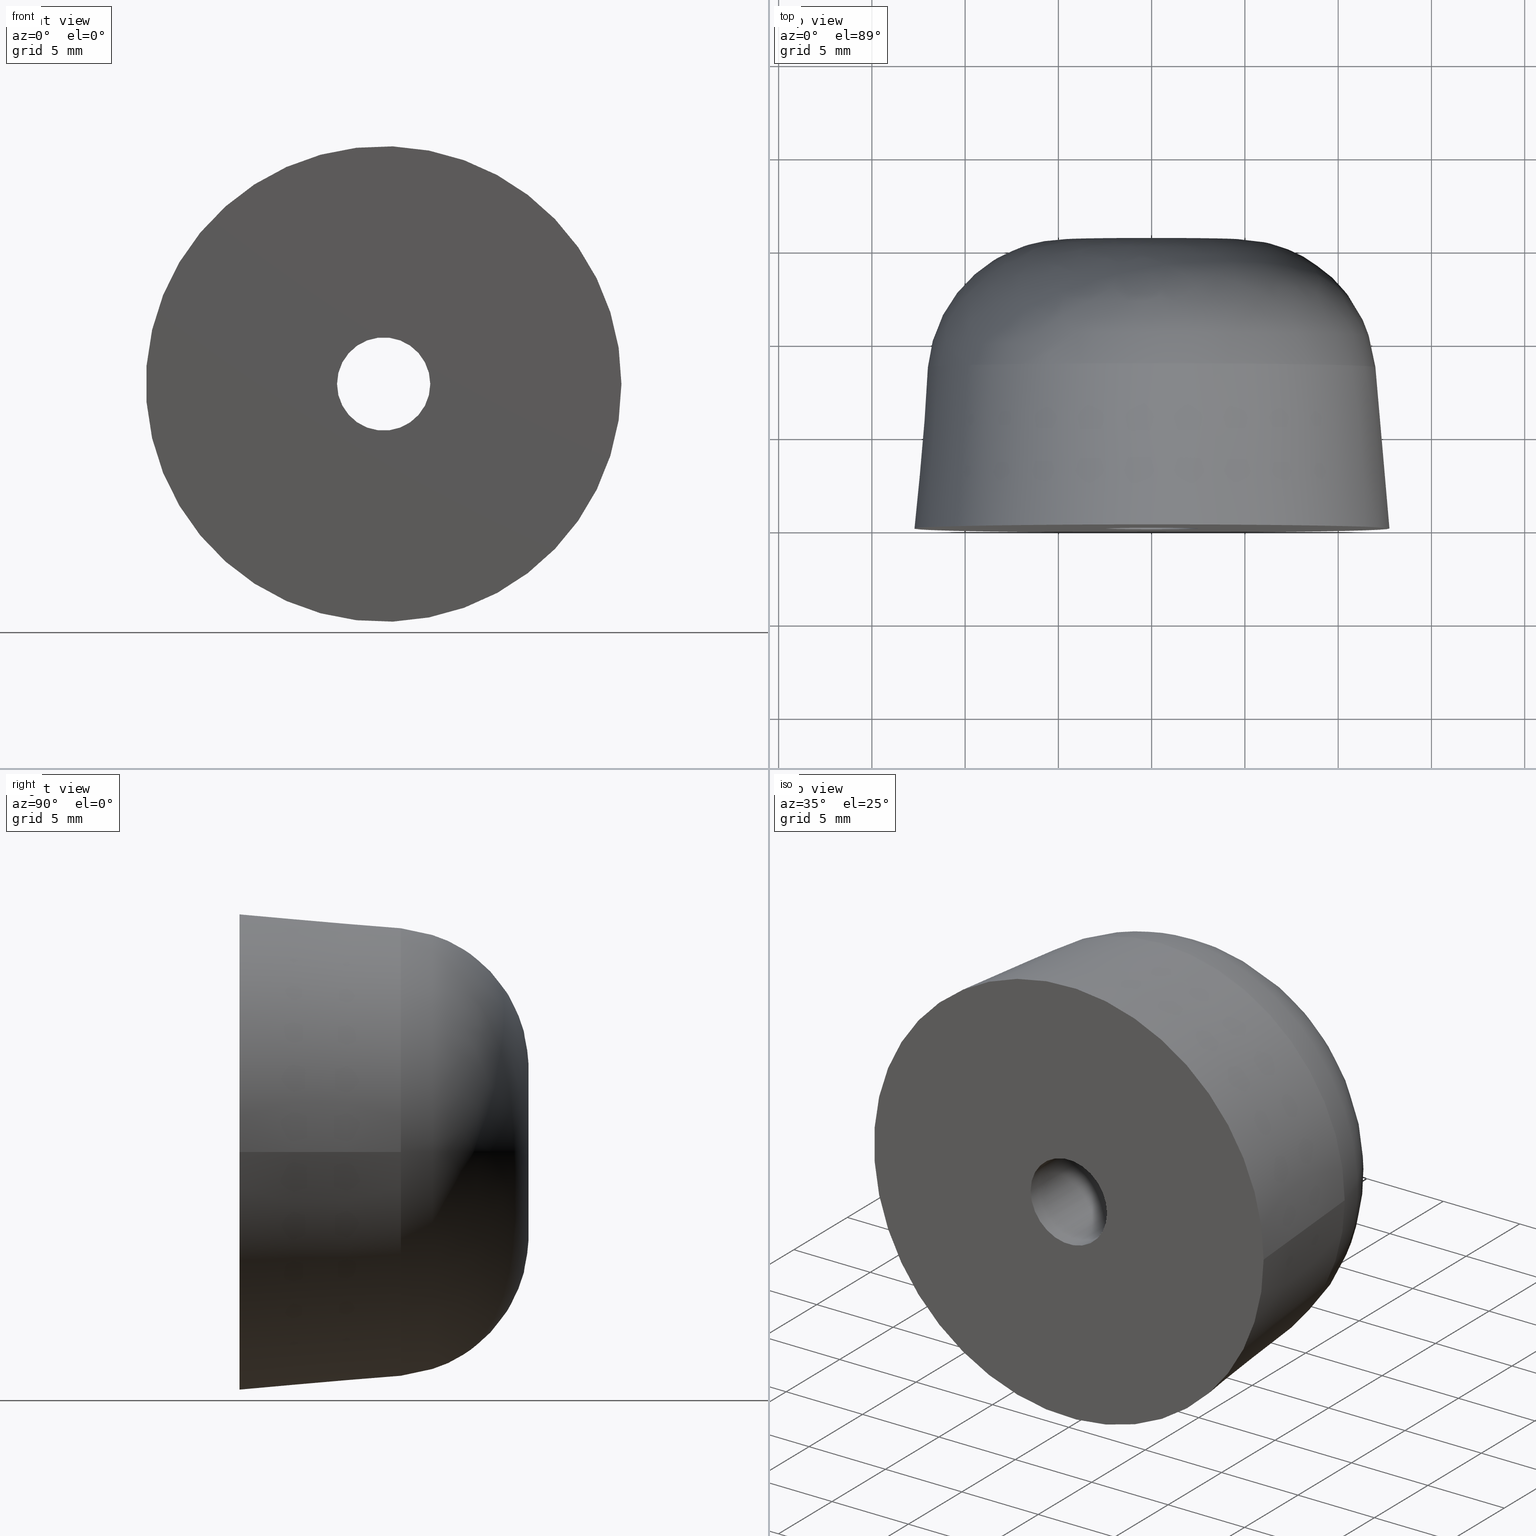
[diagram: canonical four-view strip — front | top / right | iso, engineering-drawing reading convention]
A machine part, canonical four-view strip (front | top / right | iso — engineering-drawing reading convention). The complete STEP part file that produces these views, byte-faithful:
ISO-10303-21;
HEADER;
/* Generated by software containing ST-Developer
 * from STEP Tools, Inc. (www.steptools.com) 
 */

FILE_DESCRIPTION(
/* description */ (''),
/* implementation_level */ '2;1');

FILE_NAME(
/* name */ '\\\\SYNOLOGYNAS\\web\\db2\\PR10-19\\\X2\B3C4BA74\X0\\\DR_P
R10-19.stp',
/* time_stamp */ '2023-08-15T09:14:45+09:00',
/* author */ ('user'),
/* organization */ (''),
/* preprocessor_version */ 'ST-DEVELOPER v15.6',
/* originating_system */ 'Autodesk Inventor 2015',
/* authorisation */ '');

FILE_SCHEMA (('AUTOMOTIVE_DESIGN { 1 0 10303 214 3 1 1 }'));
ENDSEC;

DATA;
#10=MECHANICAL_DESIGN_GEOMETRIC_PRESENTATION_REPRESENTATION('',(#13),#171);
#11=SHAPE_REPRESENTATION_RELATIONSHIP('SRR','None',#180,#12);
#12=ADVANCED_BREP_SHAPE_REPRESENTATION($,(#14),#170);
#13=STYLED_ITEM('',(#189),#14);
#14=MANIFOLD_SOLID_BREP('\X2\C194B9ACB4DC\X0\3',#83);
#15=CYLINDRICAL_SURFACE('',#92,4.75);
#16=CYLINDRICAL_SURFACE('',#95,2.5);
#17=PLANE('',#89);
#18=PLANE('',#93);
#19=FACE_BOUND('',#33,.T.);
#20=FACE_BOUND('',#35,.T.);
#21=FACE_BOUND('',#37,.T.);
#22=FACE_BOUND('',#39,.T.);
#23=FACE_BOUND('',#41,.T.);
#24=CONICAL_SURFACE('',#87,12.3633973375646,4.97890360522689);
#25=FACE_OUTER_BOUND('',#31,.T.);
#26=FACE_OUTER_BOUND('',#32,.T.);
#27=FACE_OUTER_BOUND('',#34,.T.);
#28=FACE_OUTER_BOUND('',#36,.T.);
#29=FACE_OUTER_BOUND('',#38,.T.);
#30=FACE_OUTER_BOUND('',#40,.T.);
#31=EDGE_LOOP('',(#62,#63,#64,#65));
#32=EDGE_LOOP('',(#66));
#33=EDGE_LOOP('',(#67));
#34=EDGE_LOOP('',(#68));
#35=EDGE_LOOP('',(#69));
#36=EDGE_LOOP('',(#70));
#37=EDGE_LOOP('',(#71));
#38=EDGE_LOOP('',(#72));
#39=EDGE_LOOP('',(#73));
#40=EDGE_LOOP('',(#74));
#41=EDGE_LOOP('',(#75));
#42=(
BOUNDED_CURVE()
B_SPLINE_CURVE(2,(#151,#152,#153),.UNSPECIFIED.,.F.,.F.)
B_SPLINE_CURVE_WITH_KNOTS((3,3),(0.0868982610506254,1.54070594691769),
 .UNSPECIFIED.)
CURVE()
GEOMETRIC_REPRESENTATION_ITEM()
RATIONAL_B_SPLINE_CURVE((1.,0.747235560490562,1.))
REPRESENTATION_ITEM('')
);
#43=CIRCLE('',#85,11.9960566161482);
#44=CIRCLE('',#86,4.75);
#45=CIRCLE('',#88,12.75);
#46=CIRCLE('',#90,4.75);
#47=CIRCLE('',#91,2.5);
#48=CIRCLE('',#94,2.5);
#49=VERTEX_POINT('',#148);
#50=VERTEX_POINT('',#150);
#51=VERTEX_POINT('',#156);
#52=VERTEX_POINT('',#159);
#53=VERTEX_POINT('',#161);
#54=VERTEX_POINT('',#165);
#55=EDGE_CURVE('',#49,#49,#43,.T.);
#56=EDGE_CURVE('',#49,#50,#42,.T.);
#57=EDGE_CURVE('',#50,#50,#44,.T.);
#58=EDGE_CURVE('',#51,#51,#45,.T.);
#59=EDGE_CURVE('',#52,#52,#46,.T.);
#60=EDGE_CURVE('',#53,#53,#47,.T.);
#61=EDGE_CURVE('',#54,#54,#48,.T.);
#62=ORIENTED_EDGE('',*,*,#55,.T.);
#63=ORIENTED_EDGE('',*,*,#56,.T.);
#64=ORIENTED_EDGE('',*,*,#57,.T.);
#65=ORIENTED_EDGE('',*,*,#56,.F.);
#66=ORIENTED_EDGE('',*,*,#58,.F.);
#67=ORIENTED_EDGE('',*,*,#55,.F.);
#68=ORIENTED_EDGE('',*,*,#59,.F.);
#69=ORIENTED_EDGE('',*,*,#60,.T.);
#70=ORIENTED_EDGE('',*,*,#57,.F.);
#71=ORIENTED_EDGE('',*,*,#59,.T.);
#72=ORIENTED_EDGE('',*,*,#58,.T.);
#73=ORIENTED_EDGE('',*,*,#61,.F.);
#74=ORIENTED_EDGE('',*,*,#61,.T.);
#75=ORIENTED_EDGE('',*,*,#60,.F.);
#76=(
BOUNDED_SURFACE()
B_SPLINE_SURFACE(2,2,((#121,#122,#123,#124,#125,#126,#127,#128,#129),(#130,
#131,#132,#133,#134,#135,#136,#137,#138),(#139,#140,#141,#142,#143,#144,
#145,#146,#147)),.UNSPECIFIED.,.F.,.T.,.F.)
B_SPLINE_SURFACE_WITH_KNOTS((3,3),(3,2,2,2,3),(-1.54070594691769,-0.0868982610506254),
(-3.14159265358979,-1.5707963267949,0.,1.5707963267949,3.14159265358979),
 .UNSPECIFIED.)
GEOMETRIC_REPRESENTATION_ITEM()
RATIONAL_B_SPLINE_SURFACE(((1.,0.707106781186548,1.,0.707106781186548,1.,
0.707106781186548,1.,0.707106781186548,1.),(0.747235560490562,0.528375331966607,
0.747235560490562,0.528375331966607,0.747235560490562,0.528375331966607,
0.747235560490562,0.528375331966607,0.747235560490562),(1.,0.707106781186548,
1.,0.707106781186548,1.,0.707106781186548,1.,0.707106781186548,1.)))
REPRESENTATION_ITEM('')
SURFACE()
);
#77=ADVANCED_FACE('',(#25),#76,.T.);
#78=ADVANCED_FACE('',(#26,#19),#24,.T.);
#79=ADVANCED_FACE('',(#27,#20),#17,.F.);
#80=ADVANCED_FACE('',(#28,#21),#15,.F.);
#81=ADVANCED_FACE('',(#29,#22),#18,.T.);
#82=ADVANCED_FACE('',(#30,#23),#16,.F.);
#83=CLOSED_SHELL('',(#77,#78,#79,#80,#81,#82));
#84=AXIS2_PLACEMENT_3D('placement',#120,#96,#97);
#85=AXIS2_PLACEMENT_3D('',#149,#98,#99);
#86=AXIS2_PLACEMENT_3D('',#154,#100,#101);
#87=AXIS2_PLACEMENT_3D('',#155,#102,#103);
#88=AXIS2_PLACEMENT_3D('',#157,#104,#105);
#89=AXIS2_PLACEMENT_3D('',#158,#106,#107);
#90=AXIS2_PLACEMENT_3D('',#160,#108,#109);
#91=AXIS2_PLACEMENT_3D('',#162,#110,#111);
#92=AXIS2_PLACEMENT_3D('',#163,#112,#113);
#93=AXIS2_PLACEMENT_3D('',#164,#114,#115);
#94=AXIS2_PLACEMENT_3D('',#166,#116,#117);
#95=AXIS2_PLACEMENT_3D('',#167,#118,#119);
#96=DIRECTION('axis',(0.,0.,1.));
#97=DIRECTION('refdir',(1.,0.,0.));
#98=DIRECTION('center_axis',(-5.06627560966057E-49,1.,4.13692798053113E-33));
#99=DIRECTION('ref_axis',(1.,0.,1.22464679914735E-16));
#100=DIRECTION('center_axis',(5.0368537706867E-17,-1.,0.));
#101=DIRECTION('ref_axis',(1.,0.,0.));
#102=DIRECTION('center_axis',(5.0368537706867E-17,-1.,0.));
#103=DIRECTION('ref_axis',(1.,4.47159814096616E-17,0.));
#104=DIRECTION('center_axis',(5.0368537706867E-17,-1.,0.));
#105=DIRECTION('ref_axis',(1.,5.0368537706867E-17,0.));
#106=DIRECTION('center_axis',(5.0368537706867E-17,-1.,0.));
#107=DIRECTION('ref_axis',(0.,0.,-1.));
#108=DIRECTION('center_axis',(5.0368537706867E-17,-1.,0.));
#109=DIRECTION('ref_axis',(1.,5.0368537706867E-17,0.));
#110=DIRECTION('center_axis',(5.0368537706867E-17,-1.,0.));
#111=DIRECTION('ref_axis',(1.,5.0368537706867E-17,0.));
#112=DIRECTION('center_axis',(5.0368537706867E-17,-1.,0.));
#113=DIRECTION('ref_axis',(1.,0.,0.));
#114=DIRECTION('center_axis',(5.0368537706867E-17,-1.,0.));
#115=DIRECTION('ref_axis',(0.,0.,-1.));
#116=DIRECTION('center_axis',(5.0368537706867E-17,-1.,0.));
#117=DIRECTION('ref_axis',(1.,5.0368537706867E-17,0.));
#118=DIRECTION('center_axis',(5.0368537706867E-17,-1.,0.));
#119=DIRECTION('ref_axis',(1.,4.47159814096616E-17,0.));
#120=CARTESIAN_POINT('',(0.,0.,0.));
#121=CARTESIAN_POINT('Ctrl Pts',(-4.75,15.5,-5.81707229594993E-16));
#122=CARTESIAN_POINT('Ctrl Pts',(-4.75,15.5,4.75));
#123=CARTESIAN_POINT('Ctrl Pts',(-9.84826537972101E-16,15.5,4.75));
#124=CARTESIAN_POINT('Ctrl Pts',(4.75,15.5,4.75));
#125=CARTESIAN_POINT('Ctrl Pts',(4.75,15.5,5.81707229594993E-16));
#126=CARTESIAN_POINT('Ctrl Pts',(4.75,15.5,-4.75));
#127=CARTESIAN_POINT('Ctrl Pts',(1.78587921217885E-16,15.5,-4.75));
#128=CARTESIAN_POINT('Ctrl Pts',(-4.75,15.5,-4.75));
#129=CARTESIAN_POINT('Ctrl Pts',(-4.75,15.5,-5.81707229594993E-16));
#130=CARTESIAN_POINT('Ctrl Pts',(-11.4171589277173,15.2993220848411,-1.39819871361856E-15));
#131=CARTESIAN_POINT('Ctrl Pts',(-11.4171589277173,15.2993220848411,11.4171589277173));
#132=CARTESIAN_POINT('Ctrl Pts',(-1.80131802199567E-15,15.2993220848411,
11.4171589277173));
#133=CARTESIAN_POINT('Ctrl Pts',(11.4171589277173,15.2993220848411,11.4171589277173));
#134=CARTESIAN_POINT('Ctrl Pts',(11.4171589277173,15.2993220848411,1.39819871361856E-15));
#135=CARTESIAN_POINT('Ctrl Pts',(11.4171589277173,15.2993220848411,-11.4171589277173));
#136=CARTESIAN_POINT('Ctrl Pts',(9.95079405241451E-16,15.2993220848411,
-11.4171589277173));
#137=CARTESIAN_POINT('Ctrl Pts',(-11.4171589277173,15.2993220848411,-11.4171589277173));
#138=CARTESIAN_POINT('Ctrl Pts',(-11.4171589277173,15.2993220848411,-1.39819871361856E-15));
#139=CARTESIAN_POINT('Ctrl Pts',(-11.9960566161482,8.65431213305011,-1.46909323373563E-15));
#140=CARTESIAN_POINT('Ctrl Pts',(-11.9960566161482,8.65431213305011,11.9960566161482));
#141=CARTESIAN_POINT('Ctrl Pts',(-1.87221254211274E-15,8.65431213305011,
11.9960566161482));
#142=CARTESIAN_POINT('Ctrl Pts',(11.9960566161482,8.65431213305011,11.9960566161482));
#143=CARTESIAN_POINT('Ctrl Pts',(11.9960566161482,8.65431213305011,1.46909323373563E-15));
#144=CARTESIAN_POINT('Ctrl Pts',(11.9960566161482,8.65431213305011,-11.9960566161482));
#145=CARTESIAN_POINT('Ctrl Pts',(1.06597392535852E-15,8.65431213305011,
-11.9960566161482));
#146=CARTESIAN_POINT('Ctrl Pts',(-11.9960566161482,8.65431213305011,-11.9960566161482));
#147=CARTESIAN_POINT('Ctrl Pts',(-11.9960566161482,8.65431213305011,-1.46909323373563E-15));
#148=CARTESIAN_POINT('',(-11.9960566161482,8.65431213305011,-2.46519032881566E-31));
#149=CARTESIAN_POINT('Origin',(-4.03119308377108E-16,8.65431213305011,2.69279684597884E-33));
#150=CARTESIAN_POINT('',(-4.75,15.5,-1.23259516440783E-31));
#151=CARTESIAN_POINT('Ctrl Pts',(-11.9960566161482,8.65431213305011,-1.46909323373563E-15));
#152=CARTESIAN_POINT('Ctrl Pts',(-11.4171589277173,15.2993220848411,-1.39819871361856E-15));
#153=CARTESIAN_POINT('Ctrl Pts',(-4.75,15.5,-5.81707229594993E-16));
#154=CARTESIAN_POINT('Origin',(-7.80712334456438E-16,15.5,0.));
#155=CARTESIAN_POINT('Origin',(-2.23520831071542E-16,4.43770737146234,0.));
#156=CARTESIAN_POINT('',(12.75,2.67891487313483E-15,0.));
#157=CARTESIAN_POINT('Origin',(-9.24446373305873E-32,2.22044604925031E-15,
0.));
#158=CARTESIAN_POINT('Origin',(0.,7.,0.));
#159=CARTESIAN_POINT('',(4.75,7.,0.));
#160=CARTESIAN_POINT('Origin',(-3.52579763948069E-16,7.,0.));
#161=CARTESIAN_POINT('',(2.5,7.,0.));
#162=CARTESIAN_POINT('Origin',(-3.52579763948069E-16,7.,0.));
#163=CARTESIAN_POINT('Origin',(-5.66646049202253E-16,11.25,0.));
#164=CARTESIAN_POINT('Origin',(2.5,6.12323399573677E-16,0.));
#165=CARTESIAN_POINT('',(2.5,6.12323399573677E-16,0.));
#166=CARTESIAN_POINT('Origin',(-3.08148791101958E-32,5.55111512312578E-16,
0.));
#167=CARTESIAN_POINT('Origin',(-1.76289881974034E-16,3.5,0.));
#168=UNCERTAINTY_MEASURE_WITH_UNIT(LENGTH_MEASURE(0.01),#172,
'DISTANCE_ACCURACY_VALUE',
'Maximum model space distance between geometric entities at asserted c
onnectivities');
#169=UNCERTAINTY_MEASURE_WITH_UNIT(LENGTH_MEASURE(1.E-6),#172,
'DISTANCE_ACCURACY_VALUE',
'Maximum model space distance between geometric entities at asserted c
onnectivities');
#170=(
GEOMETRIC_REPRESENTATION_CONTEXT(3)
GLOBAL_UNCERTAINTY_ASSIGNED_CONTEXT((#168))
GLOBAL_UNIT_ASSIGNED_CONTEXT((#172,#175,#173))
REPRESENTATION_CONTEXT('','3D')
);
#171=(
GEOMETRIC_REPRESENTATION_CONTEXT(3)
GLOBAL_UNCERTAINTY_ASSIGNED_CONTEXT((#169))
GLOBAL_UNIT_ASSIGNED_CONTEXT((#172,#175,#173))
REPRESENTATION_CONTEXT('','3D')
);
#172=(
LENGTH_UNIT()
NAMED_UNIT(*)
SI_UNIT(.MILLI.,.METRE.)
);
#173=(
NAMED_UNIT(*)
SI_UNIT($,.STERADIAN.)
SOLID_ANGLE_UNIT()
);
#174=DIMENSIONAL_EXPONENTS(0.,0.,0.,0.,0.,0.,0.);
#175=(
CONVERSION_BASED_UNIT('degree',#177)
NAMED_UNIT(#174)
PLANE_ANGLE_UNIT()
);
#176=(
NAMED_UNIT(*)
PLANE_ANGLE_UNIT()
SI_UNIT($,.RADIAN.)
);
#177=PLANE_ANGLE_MEASURE_WITH_UNIT(PLANE_ANGLE_MEASURE(0.01745329252),#176);
#178=SHAPE_DEFINITION_REPRESENTATION(#179,#180);
#179=PRODUCT_DEFINITION_SHAPE('',$,#182);
#180=SHAPE_REPRESENTATION('',(#84),#170);
#181=PRODUCT_DEFINITION_CONTEXT('part definition',#186,'design');
#182=PRODUCT_DEFINITION('DR_PR10-19','DR_PR10-19',#183,#181);
#183=PRODUCT_DEFINITION_FORMATION('',$,#188);
#184=PRODUCT_RELATED_PRODUCT_CATEGORY('DR_PR10-19','DR_PR10-19',(#188));
#185=APPLICATION_PROTOCOL_DEFINITION('international standard',
'automotive_design',2009,#186);
#186=APPLICATION_CONTEXT(
'Core Data for Automotive Mechanical Design Process');
#187=PRODUCT_CONTEXT('part definition',#186,'mechanical');
#188=PRODUCT('DR_PR10-19','DR_PR10-19',$,(#187));
#189=PRESENTATION_STYLE_ASSIGNMENT((#190));
#190=SURFACE_STYLE_USAGE(.BOTH.,#191);
#191=SURFACE_SIDE_STYLE($,(#192));
#192=SURFACE_STYLE_FILL_AREA(#193);
#193=FILL_AREA_STYLE($,(#194));
#194=FILL_AREA_STYLE_COLOUR($,#195);
#195=COLOUR_RGB('',1.,1.,1.);
ENDSEC;
END-ISO-10303-21;
